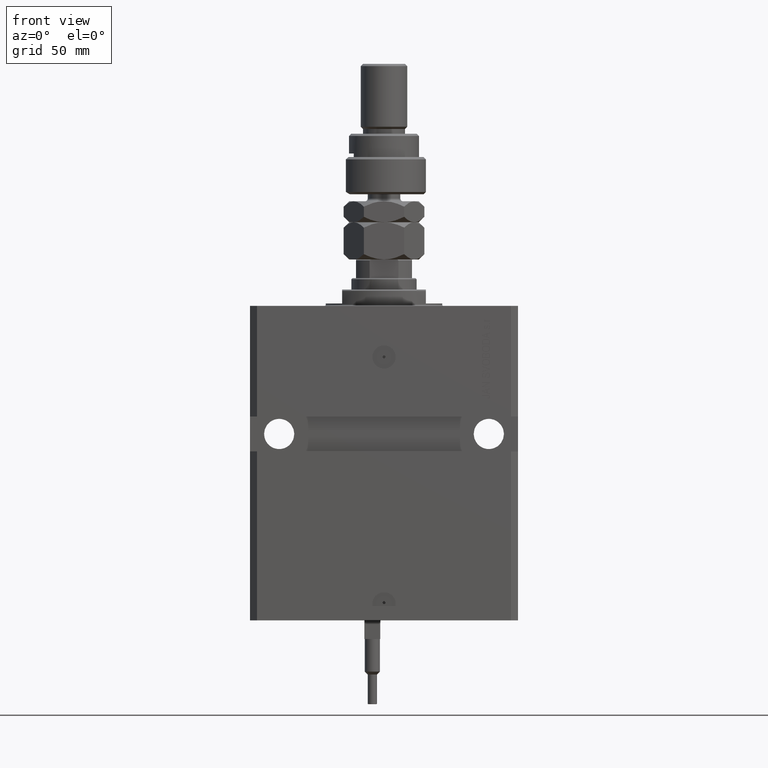
[diagram: clean part render]
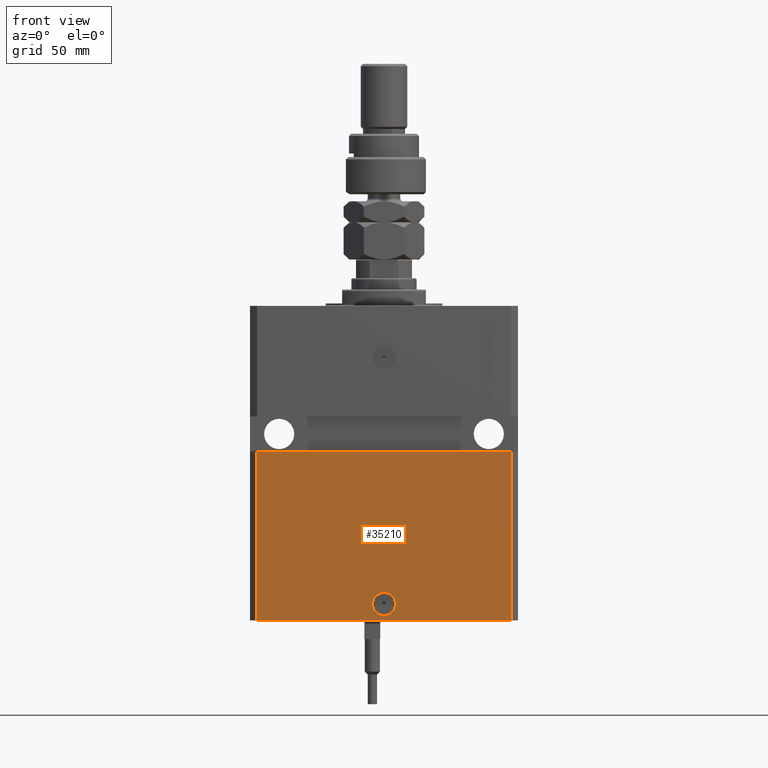
[diagram: same view with one face highlighted and labeled with its STEP entity id]
A machine part, front view. The second image highlights one B-rep face of the part: STEP entity #35210.
In plain terms, the highlighted planar face has unit normal (0, -1, 0).
Its self-contained STEP definition (entity closure, byte-faithful):
#2613 = PLANE ( 'NONE',  #41299 ) ;
#2994 = EDGE_LOOP ( 'NONE', ( #43536, #27503 ) ) ;
#4309 = VERTEX_POINT ( 'NONE', #18131 ) ;
#5435 = EDGE_CURVE ( 'NONE', #48453, #8604, #11491, .T. ) ;
#5547 = VERTEX_POINT ( 'NONE', #50912 ) ;
#5848 = VECTOR ( 'NONE', #29708, 1000.000000000000000 ) ;
#8604 = VERTEX_POINT ( 'NONE', #35532 ) ;
#8889 = CARTESIAN_POINT ( 'NONE',  ( -5.000000000000000000, -44.99999999999999289, -128.0000000000000000 ) ) ;
#9236 = EDGE_CURVE ( 'NONE', #45647, #4309, #48857, .T. ) ;
#10321 = LINE ( 'NONE', #38116, #30789 ) ;
#11159 = LINE ( 'NONE', #51902, #28838 ) ;
#11491 = LINE ( 'NONE', #47735, #26746 ) ;
#14281 = FACE_BOUND ( 'NONE', #2994, .T. ) ;
#14312 = DIRECTION ( 'NONE',  ( 1.000000000000000000, 1.273191542001326317E-16, 0.000000000000000000 ) ) ;
#14797 = CARTESIAN_POINT ( 'NONE',  ( -54.50000000000000711, -45.00000000000000000, -135.0000000000000000 ) ) ;
#15057 = FACE_OUTER_BOUND ( 'NONE', #43931, .T. ) ;
#16193 = DIRECTION ( 'NONE',  ( 0.000000000000000000, 0.000000000000000000, 1.000000000000000000 ) ) ;
#16272 = DIRECTION ( 'NONE',  ( 1.000000000000000000, 0.000000000000000000, 0.000000000000000000 ) ) ;
#16641 = ORIENTED_EDGE ( 'NONE', *, *, #5435, .F. ) ;
#18131 = CARTESIAN_POINT ( 'NONE',  ( 5.000000000000012434, -44.99999999999999289, -128.0000000000000000 ) ) ;
#19037 = DIRECTION ( 'NONE',  ( 1.273191542001326317E-16, -1.000000000000000000, 0.000000000000000000 ) ) ;
#19193 = DIRECTION ( 'NONE',  ( 1.176083712526788232E-16, -1.000000000000000000, 0.000000000000000000 ) ) ;
#19456 = CARTESIAN_POINT ( 'NONE',  ( 5.729361939005967538E-15, -44.99999999999999289, -128.0000000000000000 ) ) ;
#20114 = VERTEX_POINT ( 'NONE', #43038 ) ;
#23535 = AXIS2_PLACEMENT_3D ( 'NONE', #19456, #19193, #31627 ) ;
#24406 = CIRCLE ( 'NONE', #23535, 5.000000000000006217 ) ;
#25249 = LINE ( 'NONE', #33692, #5848 ) ;
#26746 = VECTOR ( 'NONE', #39547, 1000.000000000000000 ) ;
#27503 = ORIENTED_EDGE ( 'NONE', *, *, #9236, .F. ) ;
#28838 = VECTOR ( 'NONE', #16193, 1000.000000000000000 ) ;
#29566 = ORIENTED_EDGE ( 'NONE', *, *, #37041, .T. ) ;
#29708 = DIRECTION ( 'NONE',  ( 1.000000000000000000, 1.206764157201257045E-16, 6.033820786006285224E-17 ) ) ;
#30789 = VECTOR ( 'NONE', #14312, 1000.000000000000000 ) ;
#31627 = DIRECTION ( 'NONE',  ( 1.000000000000000000, 0.000000000000000000, 0.000000000000000000 ) ) ;
#33242 = EDGE_CURVE ( 'NONE', #4309, #45647, #24406, .T. ) ;
#33692 = CARTESIAN_POINT ( 'NONE',  ( -57.50000000000000711, -45.00000000000000000, -62.50000000000000000 ) ) ;
#35210 = ADVANCED_FACE ( 'NONE', ( #14281, #15057 ), #2613, .T. ) ;
#35532 = CARTESIAN_POINT ( 'NONE',  ( -54.50000000000000711, -45.00000000000000000, -62.50000000000000000 ) ) ;
#35931 = EDGE_CURVE ( 'NONE', #8604, #5547, #25249, .T. ) ;
#36292 = CARTESIAN_POINT ( 'NONE',  ( -54.50000000000000711, -45.00000000000000000, -135.0000000000000000 ) ) ;
#37041 = EDGE_CURVE ( 'NONE', #20114, #5547, #11159, .T. ) ;
#37418 = CARTESIAN_POINT ( 'NONE',  ( 5.729361939005967538E-15, -44.99999999999999289, -128.0000000000000000 ) ) ;
#38116 = CARTESIAN_POINT ( 'NONE',  ( -54.50000000000000711, -45.00000000000000000, -135.0000000000000000 ) ) ;
#39547 = DIRECTION ( 'NONE',  ( 0.000000000000000000, 0.000000000000000000, 1.000000000000000000 ) ) ;
#41299 = AXIS2_PLACEMENT_3D ( 'NONE', #14797, #19037, #43359 ) ;
#42436 = ORIENTED_EDGE ( 'NONE', *, *, #50872, .T. ) ;
#42802 = ORIENTED_EDGE ( 'NONE', *, *, #35931, .F. ) ;
#43038 = CARTESIAN_POINT ( 'NONE',  ( 54.50000000000000711, -44.99999999999998579, -135.0000000000000000 ) ) ;
#43359 = DIRECTION ( 'NONE',  ( 1.000000000000000000, 1.273191542001326317E-16, 0.000000000000000000 ) ) ;
#43536 = ORIENTED_EDGE ( 'NONE', *, *, #33242, .F. ) ;
#43931 = EDGE_LOOP ( 'NONE', ( #42802, #16641, #42436, #29566 ) ) ;
#45085 = DIRECTION ( 'NONE',  ( 1.176083712526788232E-16, -1.000000000000000000, 0.000000000000000000 ) ) ;
#45647 = VERTEX_POINT ( 'NONE', #8889 ) ;
#47735 = CARTESIAN_POINT ( 'NONE',  ( -54.50000000000000711, -45.00000000000000000, -135.0000000000000000 ) ) ;
#48453 = VERTEX_POINT ( 'NONE', #36292 ) ;
#48857 = CIRCLE ( 'NONE', #52221, 5.000000000000006217 ) ;
#50872 = EDGE_CURVE ( 'NONE', #48453, #20114, #10321, .T. ) ;
#50912 = CARTESIAN_POINT ( 'NONE',  ( 54.49999999999997868, -44.99999999999998579, -62.49999999999999289 ) ) ;
#51902 = CARTESIAN_POINT ( 'NONE',  ( 54.50000000000000711, -44.99999999999998579, -135.0000000000000000 ) ) ;
#52221 = AXIS2_PLACEMENT_3D ( 'NONE', #37418, #45085, #16272 ) ;